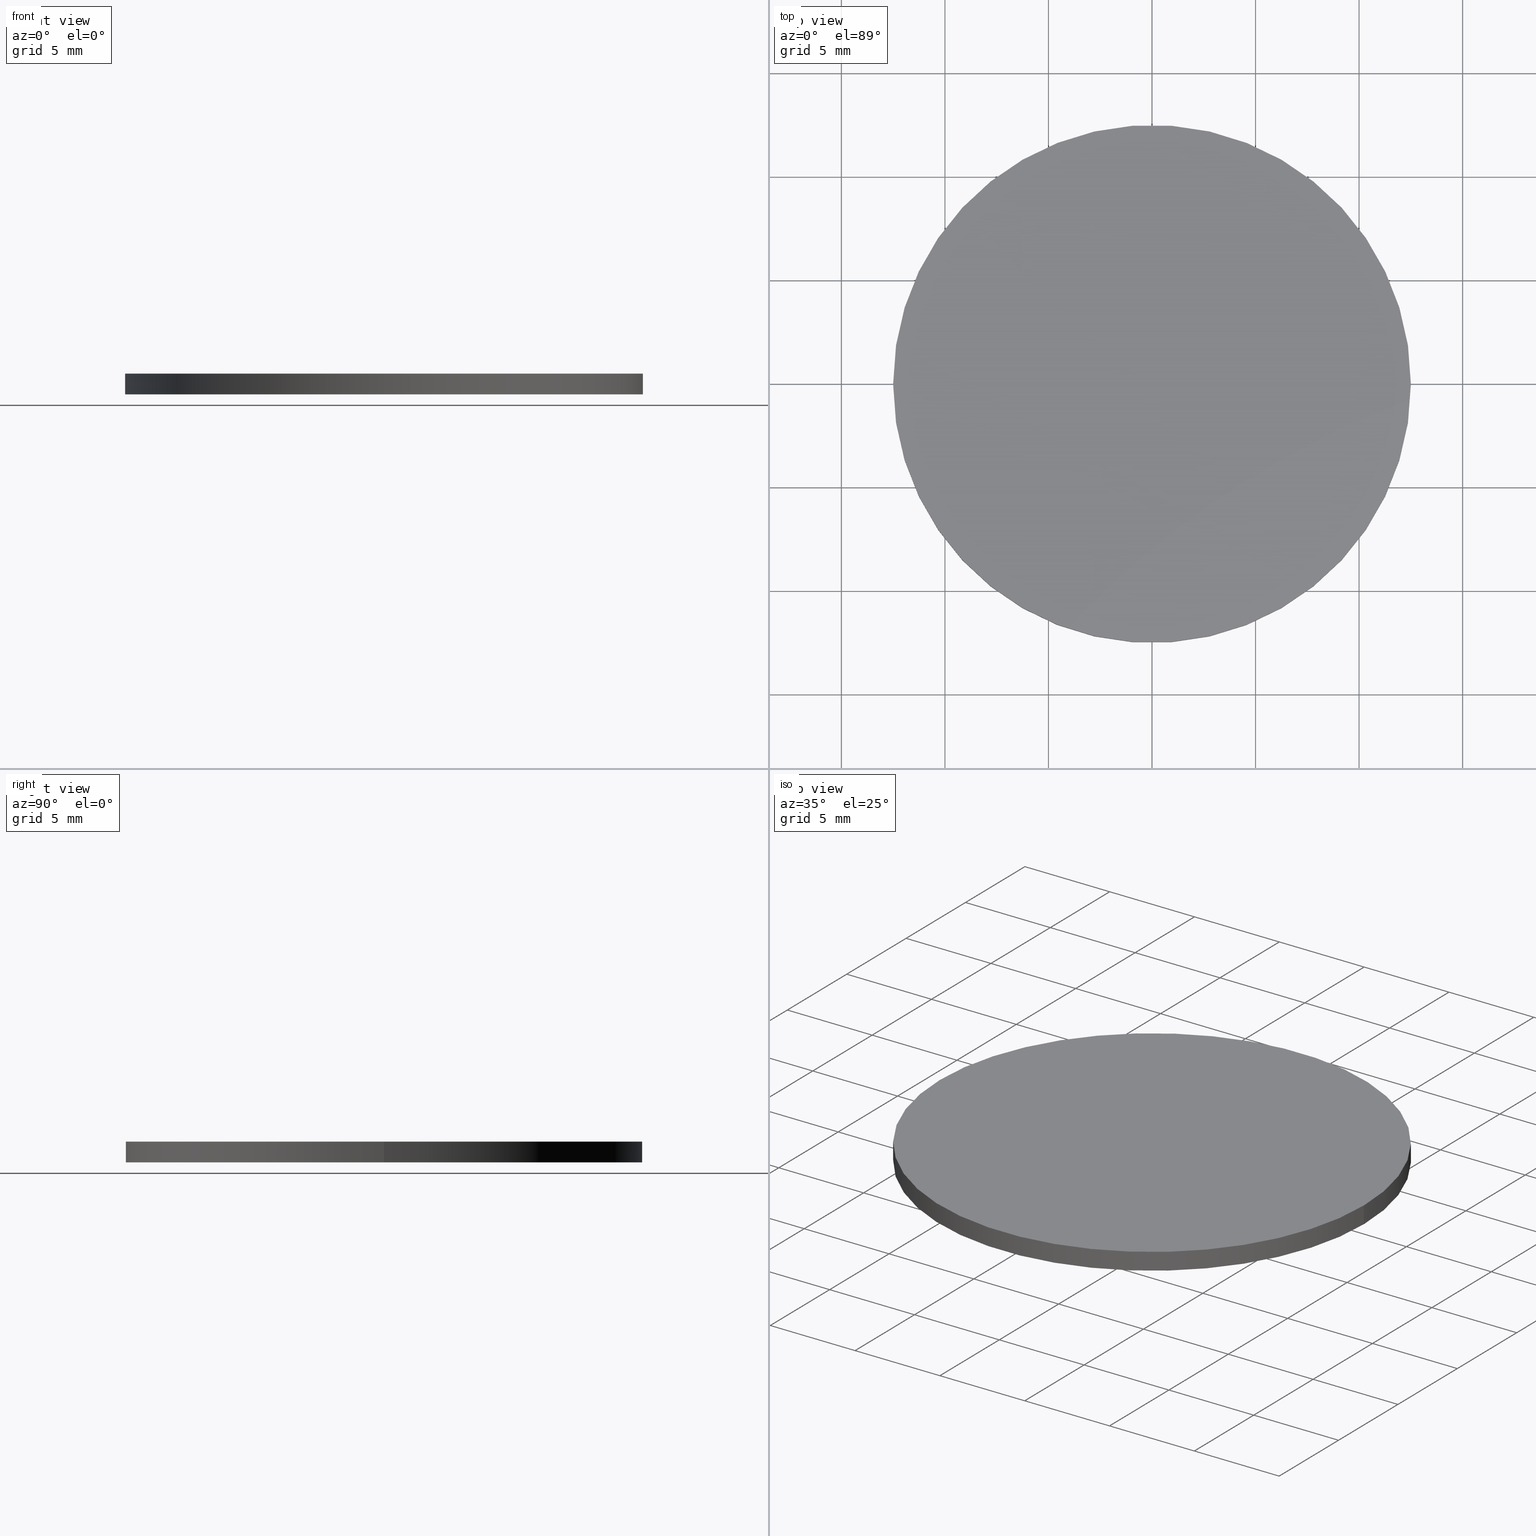
[diagram: canonical four-view strip — front | top / right | iso, engineering-drawing reading convention]
A machine part, canonical four-view strip (front | top / right | iso — engineering-drawing reading convention). The complete STEP part file that produces these views, byte-faithful:
ISO-10303-21;
HEADER;
FILE_DESCRIPTION (( 'STEP AP214' ),
    '1' );
FILE_NAME ('190117.STEP',
    '2019-07-17T02:31:30',
    ( 'user' ),
    ( '΢���й�' ),
    'SwSTEP 2.0',
    'SolidWorks 2016',
    '' );
FILE_SCHEMA (( 'AUTOMOTIVE_DESIGN' ));
ENDSEC;

DATA;
#1 = DIRECTION ( 'NONE',  ( 1.000000000000000000, 0.0000000000000000000, 0.0000000000000000000 ) ) ;
#2 = ORIENTED_EDGE ( 'NONE', *, *, #40, .T. ) ;
#3 = APPLICATION_PROTOCOL_DEFINITION ( 'draft international standard', 'automotive_design', 1998, #139 ) ;
#4 = SURFACE_STYLE_USAGE ( .BOTH. , #115 ) ;
#5 = MANIFOLD_SOLID_BREP ( '͹̨-����1', #8 ) ;
#6 = FILL_AREA_STYLE_COLOUR ( '', #77 ) ;
#7 = DIRECTION ( 'NONE',  ( -0.0000000000000000000, -0.0000000000000000000, -1.000000000000000000 ) ) ;
#8 = CLOSED_SHELL ( 'NONE', ( #62, #11, #50, #135 ) ) ;
#9 = UNCERTAINTY_MEASURE_WITH_UNIT (LENGTH_MEASURE( 1.000000000000000100E-005 ), #108, 'distance_accuracy_value', 'NONE');
#10 = AXIS2_PLACEMENT_3D ( 'NONE', #79, #80, #1 ) ;
#11 = ADVANCED_FACE ( 'NONE', ( #124 ), #42, .T. ) ;
#12 = FILL_AREA_STYLE_COLOUR ( '', #53 ) ;
#13 = ORIENTED_EDGE ( 'NONE', *, *, #58, .F. ) ;
#14 = EDGE_LOOP ( 'NONE', ( #123, #47 ) ) ;
#15 = DIRECTION ( 'NONE',  ( 0.0000000000000000000, 0.0000000000000000000, 1.000000000000000000 ) ) ;
#16 = CIRCLE ( 'NONE', #73, 12.50000000000000000 ) ;
#17 = PRODUCT_DEFINITION ( 'δ֪', '', #25, #18 ) ;
#18 = PRODUCT_DEFINITION_CONTEXT ( 'detailed design', #136, 'design' ) ;
#19 = DIRECTION ( 'NONE',  ( 0.0000000000000000000, 0.0000000000000000000, 1.000000000000000000 ) ) ;
#20 = DIRECTION ( 'NONE',  ( 1.000000000000000000, 0.0000000000000000000, -0.0000000000000000000 ) ) ;
#21 = FACE_OUTER_BOUND ( 'NONE', #14, .T. ) ;
#22 = EDGE_LOOP ( 'NONE', ( #106, #31, #2, #13 ) ) ;
#23 =( NAMED_UNIT ( * ) PLANE_ANGLE_UNIT ( ) SI_UNIT ( $, .RADIAN. ) );
#24 = CYLINDRICAL_SURFACE ( 'NONE', #48, 12.50000000000000000 ) ;
#25 = PRODUCT_DEFINITION_FORMATION_WITH_SPECIFIED_SOURCE ( '�κ�', '', #57, .NOT_KNOWN. ) ;
#26 = AXIS2_PLACEMENT_3D ( 'NONE', #98, #119, #69 ) ;
#27 =( NAMED_UNIT ( * ) PLANE_ANGLE_UNIT ( ) SI_UNIT ( $, .RADIAN. ) );
#28 = PRODUCT_RELATED_PRODUCT_CATEGORY ( 'part', '', ( #57 ) ) ;
#29 = SURFACE_STYLE_USAGE ( .BOTH. , #112 ) ;
#30 = PRESENTATION_LAYER_ASSIGNMENT (  '', '', ( #116 ) ) ;
#31 = ORIENTED_EDGE ( 'NONE', *, *, #134, .T. ) ;
#32 = EDGE_CURVE ( 'NONE', #101, #120, #129, .T. ) ;
#33 = EDGE_LOOP ( 'NONE', ( #95, #63 ) ) ;
#34 = ORIENTED_EDGE ( 'NONE', *, *, #134, .F. ) ;
#35 = AXIS2_PLACEMENT_3D ( 'NONE', #130, #15, #37 ) ;
#36 = EDGE_CURVE ( 'NONE', #41, #71, #16, .T. ) ;
#37 = DIRECTION ( 'NONE',  ( 1.000000000000000000, 0.0000000000000000000, 0.0000000000000000000 ) ) ;
#38 = AXIS2_PLACEMENT_3D ( 'NONE', #39, #51, #138 ) ;
#39 = CARTESIAN_POINT ( 'NONE',  ( 0.0000000000000000000, 0.0000000000000000000, 1.000000000000000000 ) ) ;
#40 = EDGE_CURVE ( 'NONE', #120, #101, #74, .T. ) ;
#41 = VERTEX_POINT ( 'NONE', #132 ) ;
#42 = CYLINDRICAL_SURFACE ( 'NONE', #56, 12.50000000000000000 ) ;
#43 = EDGE_LOOP ( 'NONE', ( #34, #126, #91, #117 ) ) ;
#44 = MECHANICAL_DESIGN_GEOMETRIC_PRESENTATION_REPRESENTATION (  '', ( #116 ), #64 ) ;
#45 = LINE ( 'NONE', #76, #52 ) ;
#46 =( NAMED_UNIT ( * ) PLANE_ANGLE_UNIT ( ) SI_UNIT ( $, .RADIAN. ) );
#47 = ORIENTED_EDGE ( 'NONE', *, *, #36, .T. ) ;
#48 = AXIS2_PLACEMENT_3D ( 'NONE', #125, #96, #94 ) ;
#49 =( NAMED_UNIT ( * ) SI_UNIT ( $, .STERADIAN. ) SOLID_ANGLE_UNIT ( ) );
#50 = ADVANCED_FACE ( 'NONE', ( #21 ), #107, .T. ) ;
#51 = DIRECTION ( 'NONE',  ( 0.0000000000000000000, 0.0000000000000000000, 1.000000000000000000 ) ) ;
#52 = VECTOR ( 'NONE', #66, 1000.000000000000000 ) ;
#53 = COLOUR_RGB ( '',1.000000000000000000, 1.000000000000000000, 1.000000000000000000 ) ;
#54 =( LENGTH_UNIT ( ) NAMED_UNIT ( * ) SI_UNIT ( .MILLI., .METRE. ) );
#55 = APPLICATION_PROTOCOL_DEFINITION ( 'draft international standard', 'automotive_design', 1998, #136 ) ;
#56 = AXIS2_PLACEMENT_3D ( 'NONE', #111, #7, #60 ) ;
#57 = PRODUCT ( '190117', '190117', '', ( #70 ) ) ;
#58 = EDGE_CURVE ( 'NONE', #71, #101, #103, .T. ) ;
#59 = PRESENTATION_STYLE_ASSIGNMENT (( #4 ) ) ;
#60 = DIRECTION ( 'NONE',  ( -1.000000000000000000, 0.0000000000000000000, 0.0000000000000000000 ) ) ;
#61 = PLANE ( 'NONE',  #93 ) ;
#62 = ADVANCED_FACE ( 'NONE', ( #109 ), #24, .T. ) ;
#63 = ORIENTED_EDGE ( 'NONE', *, *, #40, .F. ) ;
#64 =( GEOMETRIC_REPRESENTATION_CONTEXT ( 3 ) GLOBAL_UNCERTAINTY_ASSIGNED_CONTEXT ( ( #9 ) ) GLOBAL_UNIT_ASSIGNED_CONTEXT ( ( #108, #27, #92 ) ) REPRESENTATION_CONTEXT ( 'NONE', 'WORKASPACE' ) );
#65 = FILL_AREA_STYLE ('',( #12 ) ) ;
#66 = DIRECTION ( 'NONE',  ( -0.0000000000000000000, -0.0000000000000000000, -1.000000000000000000 ) ) ;
#67 = CARTESIAN_POINT ( 'NONE',  ( 12.50000000000000000, 1.530808498934191500E-015, 0.0000000000000000000 ) ) ;
#68 = EDGE_CURVE ( 'NONE', #71, #41, #81, .T. ) ;
#69 = DIRECTION ( 'NONE',  ( 1.000000000000000000, 0.0000000000000000000, -0.0000000000000000000 ) ) ;
#70 = PRODUCT_CONTEXT ( 'NONE', #139, 'mechanical' ) ;
#71 = VERTEX_POINT ( 'NONE', #84 ) ;
#72 = ADVANCED_BREP_SHAPE_REPRESENTATION ( '190117', ( #5, #10 ), #86 ) ;
#73 = AXIS2_PLACEMENT_3D ( 'NONE', #105, #102, #97 ) ;
#74 = CIRCLE ( 'NONE', #75, 12.50000000000000000 ) ;
#75 = AXIS2_PLACEMENT_3D ( 'NONE', #88, #85, #104 ) ;
#76 = CARTESIAN_POINT ( 'NONE',  ( 12.50000000000000000, 1.530808498934191500E-015, 1.000000000000000000 ) ) ;
#77 = COLOUR_RGB ( '',1.000000000000000000, 1.000000000000000000, 1.000000000000000000 ) ;
#78 = DIRECTION ( 'NONE',  ( -0.0000000000000000000, -0.0000000000000000000, -1.000000000000000000 ) ) ;
#79 = CARTESIAN_POINT ( 'NONE',  ( 0.0000000000000000000, 0.0000000000000000000, 0.0000000000000000000 ) ) ;
#80 = DIRECTION ( 'NONE',  ( 0.0000000000000000000, 0.0000000000000000000, 1.000000000000000000 ) ) ;
#81 = CIRCLE ( 'NONE', #38, 12.50000000000000000 ) ;
#82 = FACE_OUTER_BOUND ( 'NONE', #33, .T. ) ;
#83 = CARTESIAN_POINT ( 'NONE',  ( -12.50000000000000000, 0.0000000000000000000, 0.0000000000000000000 ) ) ;
#84 = CARTESIAN_POINT ( 'NONE',  ( -12.50000000000000000, 0.0000000000000000000, 1.000000000000000000 ) ) ;
#85 = DIRECTION ( 'NONE',  ( 0.0000000000000000000, 0.0000000000000000000, 1.000000000000000000 ) ) ;
#86 =( GEOMETRIC_REPRESENTATION_CONTEXT ( 3 ) GLOBAL_UNCERTAINTY_ASSIGNED_CONTEXT ( ( #133 ) ) GLOBAL_UNIT_ASSIGNED_CONTEXT ( ( #54, #46, #49 ) ) REPRESENTATION_CONTEXT ( 'NONE', 'WORKASPACE' ) );
#87 = CARTESIAN_POINT ( 'NONE',  ( 0.0000000000000000000, 0.0000000000000000000, 0.0000000000000000000 ) ) ;
#88 = CARTESIAN_POINT ( 'NONE',  ( 0.0000000000000000000, 0.0000000000000000000, 0.0000000000000000000 ) ) ;
#89 =( NAMED_UNIT ( * ) SI_UNIT ( $, .STERADIAN. ) SOLID_ANGLE_UNIT ( ) );
#90 = SURFACE_STYLE_FILL_AREA ( #128 ) ;
#91 = ORIENTED_EDGE ( 'NONE', *, *, #58, .T. ) ;
#92 =( NAMED_UNIT ( * ) SI_UNIT ( $, .STERADIAN. ) SOLID_ANGLE_UNIT ( ) );
#93 = AXIS2_PLACEMENT_3D ( 'NONE', #87, #19, #20 ) ;
#94 = DIRECTION ( 'NONE',  ( -1.000000000000000000, 0.0000000000000000000, 0.0000000000000000000 ) ) ;
#95 = ORIENTED_EDGE ( 'NONE', *, *, #32, .F. ) ;
#96 = DIRECTION ( 'NONE',  ( -0.0000000000000000000, -0.0000000000000000000, -1.000000000000000000 ) ) ;
#97 = DIRECTION ( 'NONE',  ( 1.000000000000000000, 0.0000000000000000000, 0.0000000000000000000 ) ) ;
#98 = CARTESIAN_POINT ( 'NONE',  ( 0.0000000000000000000, 0.0000000000000000000, 1.000000000000000000 ) ) ;
#99 =( LENGTH_UNIT ( ) NAMED_UNIT ( * ) SI_UNIT ( .MILLI., .METRE. ) );
#100 = VECTOR ( 'NONE', #78, 1000.000000000000000 ) ;
#101 = VERTEX_POINT ( 'NONE', #83 ) ;
#102 = DIRECTION ( 'NONE',  ( 0.0000000000000000000, 0.0000000000000000000, 1.000000000000000000 ) ) ;
#103 = LINE ( 'NONE', #113, #100 ) ;
#104 = DIRECTION ( 'NONE',  ( 1.000000000000000000, 0.0000000000000000000, 0.0000000000000000000 ) ) ;
#105 = CARTESIAN_POINT ( 'NONE',  ( 0.0000000000000000000, 0.0000000000000000000, 1.000000000000000000 ) ) ;
#106 = ORIENTED_EDGE ( 'NONE', *, *, #36, .F. ) ;
#107 = PLANE ( 'NONE',  #26 ) ;
#108 =( LENGTH_UNIT ( ) NAMED_UNIT ( * ) SI_UNIT ( .MILLI., .METRE. ) );
#109 = FACE_OUTER_BOUND ( 'NONE', #22, .T. ) ;
#110 = STYLED_ITEM ( 'NONE', ( #118 ), #72 ) ;
#111 = CARTESIAN_POINT ( 'NONE',  ( 0.0000000000000000000, 0.0000000000000000000, 1.000000000000000000 ) ) ;
#112 = SURFACE_SIDE_STYLE ('',( #137 ) ) ;
#113 = CARTESIAN_POINT ( 'NONE',  ( -12.50000000000000000, 0.0000000000000000000, 1.000000000000000000 ) ) ;
#114 = PRESENTATION_LAYER_ASSIGNMENT (  '', '', ( #110 ) ) ;
#115 = SURFACE_SIDE_STYLE ('',( #90 ) ) ;
#116 = STYLED_ITEM ( 'NONE', ( #59 ), #5 ) ;
#117 = ORIENTED_EDGE ( 'NONE', *, *, #32, .T. ) ;
#118 = PRESENTATION_STYLE_ASSIGNMENT (( #29 ) ) ;
#119 = DIRECTION ( 'NONE',  ( 0.0000000000000000000, 0.0000000000000000000, 1.000000000000000000 ) ) ;
#120 = VERTEX_POINT ( 'NONE', #67 ) ;
#121 = SHAPE_DEFINITION_REPRESENTATION ( #127, #72 ) ;
#122 = MECHANICAL_DESIGN_GEOMETRIC_PRESENTATION_REPRESENTATION (  '', ( #110 ), #131 ) ;
#123 = ORIENTED_EDGE ( 'NONE', *, *, #68, .T. ) ;
#124 = FACE_OUTER_BOUND ( 'NONE', #43, .T. ) ;
#125 = CARTESIAN_POINT ( 'NONE',  ( 0.0000000000000000000, 0.0000000000000000000, 1.000000000000000000 ) ) ;
#126 = ORIENTED_EDGE ( 'NONE', *, *, #68, .F. ) ;
#127 = PRODUCT_DEFINITION_SHAPE ( 'NONE', 'NONE',  #17 ) ;
#128 = FILL_AREA_STYLE ('',( #6 ) ) ;
#129 = CIRCLE ( 'NONE', #35, 12.50000000000000000 ) ;
#130 = CARTESIAN_POINT ( 'NONE',  ( 0.0000000000000000000, 0.0000000000000000000, 0.0000000000000000000 ) ) ;
#131 =( GEOMETRIC_REPRESENTATION_CONTEXT ( 3 ) GLOBAL_UNCERTAINTY_ASSIGNED_CONTEXT ( ( #140 ) ) GLOBAL_UNIT_ASSIGNED_CONTEXT ( ( #99, #23, #89 ) ) REPRESENTATION_CONTEXT ( 'NONE', 'WORKASPACE' ) );
#132 = CARTESIAN_POINT ( 'NONE',  ( 12.50000000000000000, 1.530808498934191500E-015, 1.000000000000000000 ) ) ;
#133 = UNCERTAINTY_MEASURE_WITH_UNIT (LENGTH_MEASURE( 1.000000000000000100E-005 ), #54, 'distance_accuracy_value', 'NONE');
#134 = EDGE_CURVE ( 'NONE', #41, #120, #45, .T. ) ;
#135 = ADVANCED_FACE ( 'NONE', ( #82 ), #61, .F. ) ;
#136 = APPLICATION_CONTEXT ( 'automotive_design' ) ;
#137 = SURFACE_STYLE_FILL_AREA ( #65 ) ;
#138 = DIRECTION ( 'NONE',  ( 1.000000000000000000, 0.0000000000000000000, 0.0000000000000000000 ) ) ;
#139 = APPLICATION_CONTEXT ( 'automotive_design' ) ;
#140 = UNCERTAINTY_MEASURE_WITH_UNIT (LENGTH_MEASURE( 1.000000000000000100E-005 ), #99, 'distance_accuracy_value', 'NONE');
ENDSEC;
END-ISO-10303-21;
